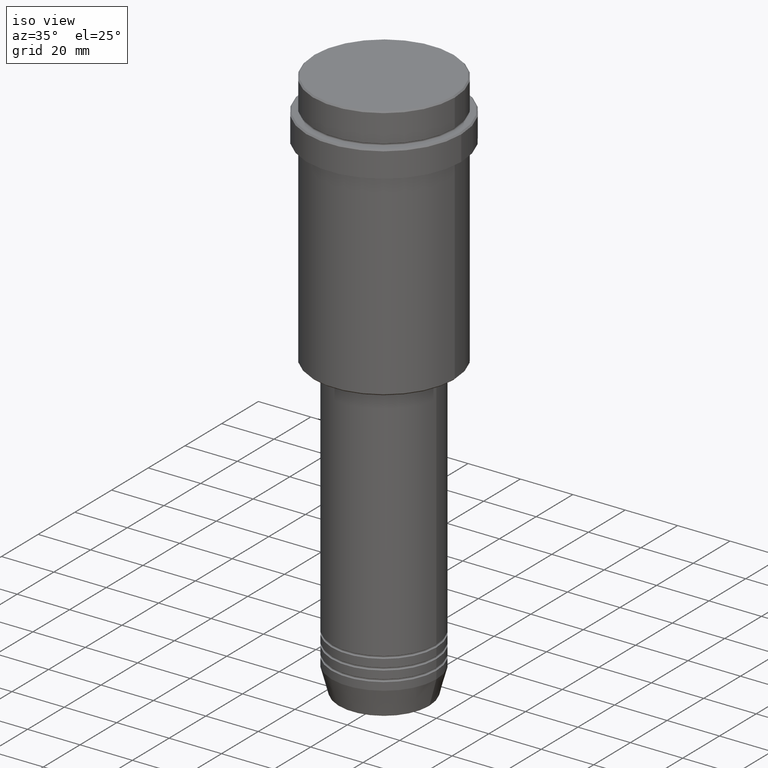
[diagram: clean part render]
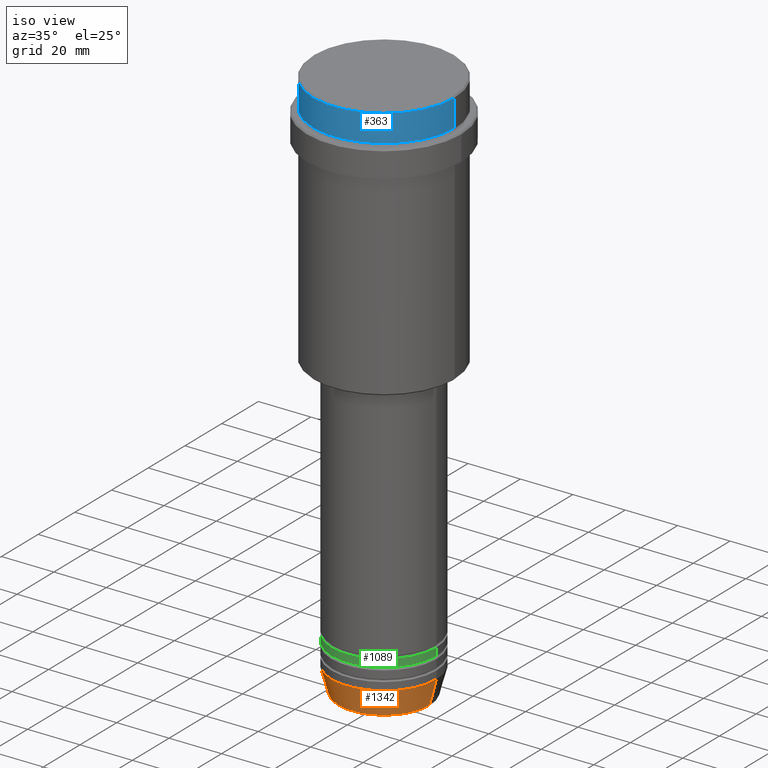
[diagram: same view with three faces highlighted in distinct colors, each labeled with its STEP entity id]
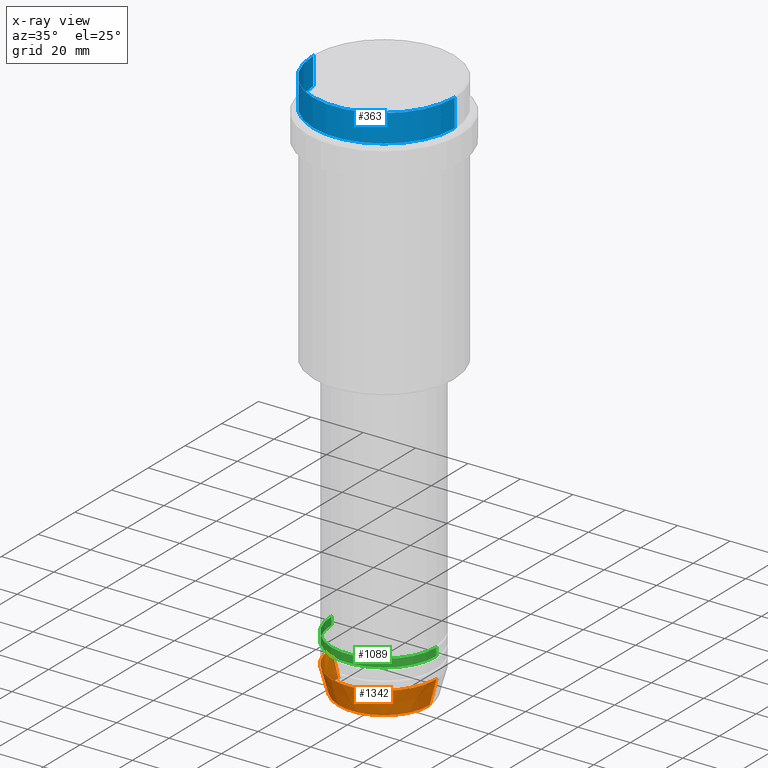
[diagram: x-ray of the same camera — body ghosted, the three highlighted faces saturated]
A machine part, iso view with three faces highlighted in distinct colors.
The next image is the same camera in x-ray (body ghosted, the three faces saturated) — at least one of them is partly hidden behind the body in this view.
Their STEP definitions:

[orange] entity #1342 — the highlighted conical surface has half-angle 15 deg.
#10 = ORIENTED_EDGE ( 'NONE', *, *, #587, .T. ) ;
#20 = LINE ( 'NONE', #1079, #711 ) ;
#74 = CARTESIAN_POINT ( 'NONE',  ( 0.000000000000000000, 0.000000000000000000, -203.0000000000000000 ) ) ;
#122 = EDGE_CURVE ( 'NONE', #966, #448, #267, .T. ) ;
#137 = VERTEX_POINT ( 'NONE', #996 ) ;
#141 = EDGE_CURVE ( 'NONE', #966, #137, #20, .T. ) ;
#173 = CARTESIAN_POINT ( 'NONE',  ( -17.41980749484381974, 2.291302373663531126E-15, -212.6294095225512706 ) ) ;
#193 = DIRECTION ( 'NONE',  ( 0.2588190451025205729, 0.000000000000000000, 0.9659258262890683122 ) ) ;
#196 = AXIS2_PLACEMENT_3D ( 'NONE', #260, #518, #1401 ) ;
#216 = LINE ( 'NONE', #1405, #1284 ) ;
#232 = DIRECTION ( 'NONE',  ( -0.2588190451025205729, 3.169619151431761860E-17, 0.9659258262890683122 ) ) ;
#260 = CARTESIAN_POINT ( 'NONE',  ( 0.000000000000000000, 0.000000000000000000, -203.0000000000000000 ) ) ;
#267 = CIRCLE ( 'NONE', #1050, 17.41980749484381974 ) ;
#302 = CARTESIAN_POINT ( 'NONE',  ( 20.00000000000000000, 0.000000000000000000, -203.0000000000000000 ) ) ;
#348 = AXIS2_PLACEMENT_3D ( 'NONE', #74, #615, #517 ) ;
#376 = FACE_OUTER_BOUND ( 'NONE', #994, .T. ) ;
#413 = CARTESIAN_POINT ( 'NONE',  ( 17.41980749484381974, 0.000000000000000000, -212.6294095225512706 ) ) ;
#414 = CARTESIAN_POINT ( 'NONE',  ( 0.000000000000000000, 0.000000000000000000, -212.6294095225512706 ) ) ;
#439 = DIRECTION ( 'NONE',  ( 1.000000000000000000, 0.000000000000000000, 0.000000000000000000 ) ) ;
#448 = VERTEX_POINT ( 'NONE', #413 ) ;
#493 = VERTEX_POINT ( 'NONE', #302 ) ;
#517 = DIRECTION ( 'NONE',  ( 1.000000000000000000, 0.000000000000000000, 0.000000000000000000 ) ) ;
#518 = DIRECTION ( 'NONE',  ( -0.000000000000000000, -0.000000000000000000, 1.000000000000000000 ) ) ;
#521 = EDGE_CURVE ( 'NONE', #137, #493, #935, .T. ) ;
#565 = ORIENTED_EDGE ( 'NONE', *, *, #521, .F. ) ;
#587 = EDGE_CURVE ( 'NONE', #448, #493, #216, .T. ) ;
#615 = DIRECTION ( 'NONE',  ( -0.000000000000000000, -0.000000000000000000, 1.000000000000000000 ) ) ;
#711 = VECTOR ( 'NONE', #232, 1000.000000000000114 ) ;
#774 = ORIENTED_EDGE ( 'NONE', *, *, #122, .T. ) ;
#842 = DIRECTION ( 'NONE',  ( -0.000000000000000000, -0.000000000000000000, 1.000000000000000000 ) ) ;
#935 = CIRCLE ( 'NONE', #348, 20.00000000000000000 ) ;
#966 = VERTEX_POINT ( 'NONE', #173 ) ;
#994 = EDGE_LOOP ( 'NONE', ( #1390, #774, #10, #565 ) ) ;
#996 = CARTESIAN_POINT ( 'NONE',  ( -20.00000000000000000, 2.449293598294706513E-15, -203.0000000000000000 ) ) ;
#1050 = AXIS2_PLACEMENT_3D ( 'NONE', #414, #842, #439 ) ;
#1079 = CARTESIAN_POINT ( 'NONE',  ( -20.00000000000000000, 2.449293598294706513E-15, -203.0000000000000000 ) ) ;
#1147 = CONICAL_SURFACE ( 'NONE', #196, 20.00000000000000000, 0.2617993877991492413 ) ;
#1284 = VECTOR ( 'NONE', #193, 1000.000000000000114 ) ;
#1342 = ADVANCED_FACE ( 'NONE', ( #376 ), #1147, .T. ) ;
#1390 = ORIENTED_EDGE ( 'NONE', *, *, #141, .F. ) ;
#1401 = DIRECTION ( 'NONE',  ( 1.000000000000000000, 0.000000000000000000, 0.000000000000000000 ) ) ;
#1405 = CARTESIAN_POINT ( 'NONE',  ( 20.00000000000000000, 0.000000000000000000, -203.0000000000000000 ) ) ;

[blue] entity #363 — the highlighted cylindrical surface (partial cylindrical patch) has radius 27 mm, axis along (-0, -0, 1).
#32 = DIRECTION ( 'NONE',  ( 1.000000000000000000, 0.000000000000000000, 0.000000000000000000 ) ) ;
#48 = VERTEX_POINT ( 'NONE', #1209 ) ;
#60 = DIRECTION ( 'NONE',  ( -0.000000000000000000, -0.000000000000000000, 1.000000000000000000 ) ) ;
#129 = CYLINDRICAL_SURFACE ( 'NONE', #1011, 27.00000000000000355 ) ;
#228 = ORIENTED_EDGE ( 'NONE', *, *, #490, .F. ) ;
#241 = CARTESIAN_POINT ( 'NONE',  ( 27.00000000000000355, 0.000000000000000000, -0.4999999999999796274 ) ) ;
#268 = VECTOR ( 'NONE', #1042, 1000.000000000000000 ) ;
#363 = ADVANCED_FACE ( 'NONE', ( #1117 ), #129, .T. ) ;
#378 = ORIENTED_EDGE ( 'NONE', *, *, #1404, .T. ) ;
#396 = DIRECTION ( 'NONE',  ( 1.000000000000000000, 0.000000000000000000, 0.000000000000000000 ) ) ;
#400 = DIRECTION ( 'NONE',  ( -0.000000000000000000, -0.000000000000000000, 1.000000000000000000 ) ) ;
#418 = CARTESIAN_POINT ( 'NONE',  ( 27.00000000000000355, 0.000000000000000000, -11.00000000000000178 ) ) ;
#468 = ORIENTED_EDGE ( 'NONE', *, *, #1225, .T. ) ;
#480 = DIRECTION ( 'NONE',  ( -0.000000000000000000, -0.000000000000000000, 1.000000000000000000 ) ) ;
#490 = EDGE_CURVE ( 'NONE', #1359, #48, #1266, .T. ) ;
#625 = EDGE_LOOP ( 'NONE', ( #228, #468, #923, #378 ) ) ;
#641 = AXIS2_PLACEMENT_3D ( 'NONE', #1140, #60, #396 ) ;
#732 = CARTESIAN_POINT ( 'NONE',  ( 0.000000000000000000, 0.000000000000000000, -0.4999999999999796274 ) ) ;
#831 = VERTEX_POINT ( 'NONE', #241 ) ;
#923 = ORIENTED_EDGE ( 'NONE', *, *, #1292, .T. ) ;
#990 = VERTEX_POINT ( 'NONE', #418 ) ;
#1011 = AXIS2_PLACEMENT_3D ( 'NONE', #1150, #480, #32 ) ;
#1042 = DIRECTION ( 'NONE',  ( -0.000000000000000000, -0.000000000000000000, 1.000000000000000000 ) ) ;
#1051 = CARTESIAN_POINT ( 'NONE',  ( -27.00000000000000355, 3.306546357697854128E-15, -11.00000000000000178 ) ) ;
#1052 = AXIS2_PLACEMENT_3D ( 'NONE', #732, #1407, #1186 ) ;
#1076 = CIRCLE ( 'NONE', #641, 27.00000000000000355 ) ;
#1117 = FACE_OUTER_BOUND ( 'NONE', #625, .T. ) ;
#1128 = CARTESIAN_POINT ( 'NONE',  ( 27.00000000000000355, 0.000000000000000000, 0.000000000000000000 ) ) ;
#1140 = CARTESIAN_POINT ( 'NONE',  ( 0.000000000000000000, 0.000000000000000000, -11.00000000000000178 ) ) ;
#1150 = CARTESIAN_POINT ( 'NONE',  ( 0.000000000000000000, 0.000000000000000000, 0.000000000000000000 ) ) ;
#1186 = DIRECTION ( 'NONE',  ( 1.000000000000000000, 0.000000000000000000, 0.000000000000000000 ) ) ;
#1190 = CIRCLE ( 'NONE', #1052, 27.00000000000000355 ) ;
#1209 = CARTESIAN_POINT ( 'NONE',  ( -27.00000000000000355, 3.306546357697854128E-15, -0.4999999999999796274 ) ) ;
#1219 = VECTOR ( 'NONE', #400, 1000.000000000000000 ) ;
#1225 = EDGE_CURVE ( 'NONE', #1359, #990, #1076, .T. ) ;
#1266 = LINE ( 'NONE', #1281, #1219 ) ;
#1281 = CARTESIAN_POINT ( 'NONE',  ( -27.00000000000000355, 3.306546357697854128E-15, 0.000000000000000000 ) ) ;
#1292 = EDGE_CURVE ( 'NONE', #990, #831, #1351, .T. ) ;
#1351 = LINE ( 'NONE', #1128, #268 ) ;
#1359 = VERTEX_POINT ( 'NONE', #1051 ) ;
#1404 = EDGE_CURVE ( 'NONE', #831, #48, #1190, .T. ) ;
#1407 = DIRECTION ( 'NONE',  ( 0.000000000000000000, 0.000000000000000000, -1.000000000000000000 ) ) ;

[green] entity #1089 — the highlighted cylindrical surface (partial cylindrical patch) has radius 20 mm, axis along (-0, -0, 1).
#8 = DIRECTION ( 'NONE',  ( -0.000000000000000000, -0.000000000000000000, 1.000000000000000000 ) ) ;
#97 = VERTEX_POINT ( 'NONE', #150 ) ;
#128 = DIRECTION ( 'NONE',  ( -0.000000000000000000, -0.000000000000000000, 1.000000000000000000 ) ) ;
#138 = LINE ( 'NONE', #1239, #249 ) ;
#150 = CARTESIAN_POINT ( 'NONE',  ( -20.00000000000000000, 2.449293598294706513E-15, -191.9999999999999147 ) ) ;
#152 = CARTESIAN_POINT ( 'NONE',  ( 0.000000000000000000, 0.000000000000000000, -194.9999999999999147 ) ) ;
#249 = VECTOR ( 'NONE', #128, 1000.000000000000000 ) ;
#273 = ORIENTED_EDGE ( 'NONE', *, *, #417, .T. ) ;
#293 = CIRCLE ( 'NONE', #712, 20.00000000000000000 ) ;
#301 = ORIENTED_EDGE ( 'NONE', *, *, #836, .F. ) ;
#329 = CYLINDRICAL_SURFACE ( 'NONE', #553, 20.00000000000000000 ) ;
#417 = EDGE_CURVE ( 'NONE', #880, #929, #293, .T. ) ;
#548 = DIRECTION ( 'NONE',  ( 1.000000000000000000, 0.000000000000000000, 0.000000000000000000 ) ) ;
#553 = AXIS2_PLACEMENT_3D ( 'NONE', #903, #1004, #548 ) ;
#602 = DIRECTION ( 'NONE',  ( -0.000000000000000000, -0.000000000000000000, 1.000000000000000000 ) ) ;
#648 = CIRCLE ( 'NONE', #1144, 20.00000000000000000 ) ;
#652 = DIRECTION ( 'NONE',  ( -0.000000000000000000, -0.000000000000000000, 1.000000000000000000 ) ) ;
#676 = EDGE_CURVE ( 'NONE', #929, #1201, #873, .T. ) ;
#705 = ORIENTED_EDGE ( 'NONE', *, *, #676, .T. ) ;
#712 = AXIS2_PLACEMENT_3D ( 'NONE', #152, #602, #1030 ) ;
#722 = CARTESIAN_POINT ( 'NONE',  ( 0.000000000000000000, 0.000000000000000000, -191.9999999999999147 ) ) ;
#750 = DIRECTION ( 'NONE',  ( 1.000000000000000000, 0.000000000000000000, 0.000000000000000000 ) ) ;
#836 = EDGE_CURVE ( 'NONE', #880, #97, #138, .T. ) ;
#873 = LINE ( 'NONE', #1314, #1380 ) ;
#880 = VERTEX_POINT ( 'NONE', #1226 ) ;
#903 = CARTESIAN_POINT ( 'NONE',  ( 0.000000000000000000, 0.000000000000000000, 0.000000000000000000 ) ) ;
#929 = VERTEX_POINT ( 'NONE', #963 ) ;
#961 = EDGE_CURVE ( 'NONE', #97, #1201, #648, .T. ) ;
#963 = CARTESIAN_POINT ( 'NONE',  ( 20.00000000000000000, 0.000000000000000000, -194.9999999999999147 ) ) ;
#998 = FACE_OUTER_BOUND ( 'NONE', #1370, .T. ) ;
#1004 = DIRECTION ( 'NONE',  ( -0.000000000000000000, -0.000000000000000000, 1.000000000000000000 ) ) ;
#1030 = DIRECTION ( 'NONE',  ( 1.000000000000000000, 0.000000000000000000, 0.000000000000000000 ) ) ;
#1089 = ADVANCED_FACE ( 'NONE', ( #998 ), #329, .T. ) ;
#1144 = AXIS2_PLACEMENT_3D ( 'NONE', #722, #652, #750 ) ;
#1201 = VERTEX_POINT ( 'NONE', #1269 ) ;
#1226 = CARTESIAN_POINT ( 'NONE',  ( -20.00000000000000000, 2.449293598294706513E-15, -194.9999999999999147 ) ) ;
#1239 = CARTESIAN_POINT ( 'NONE',  ( -20.00000000000000000, 2.449293598294706513E-15, 0.000000000000000000 ) ) ;
#1269 = CARTESIAN_POINT ( 'NONE',  ( 20.00000000000000000, 0.000000000000000000, -191.9999999999999147 ) ) ;
#1314 = CARTESIAN_POINT ( 'NONE',  ( 20.00000000000000000, 0.000000000000000000, 0.000000000000000000 ) ) ;
#1323 = ORIENTED_EDGE ( 'NONE', *, *, #961, .F. ) ;
#1370 = EDGE_LOOP ( 'NONE', ( #301, #273, #705, #1323 ) ) ;
#1380 = VECTOR ( 'NONE', #8, 1000.000000000000000 ) ;